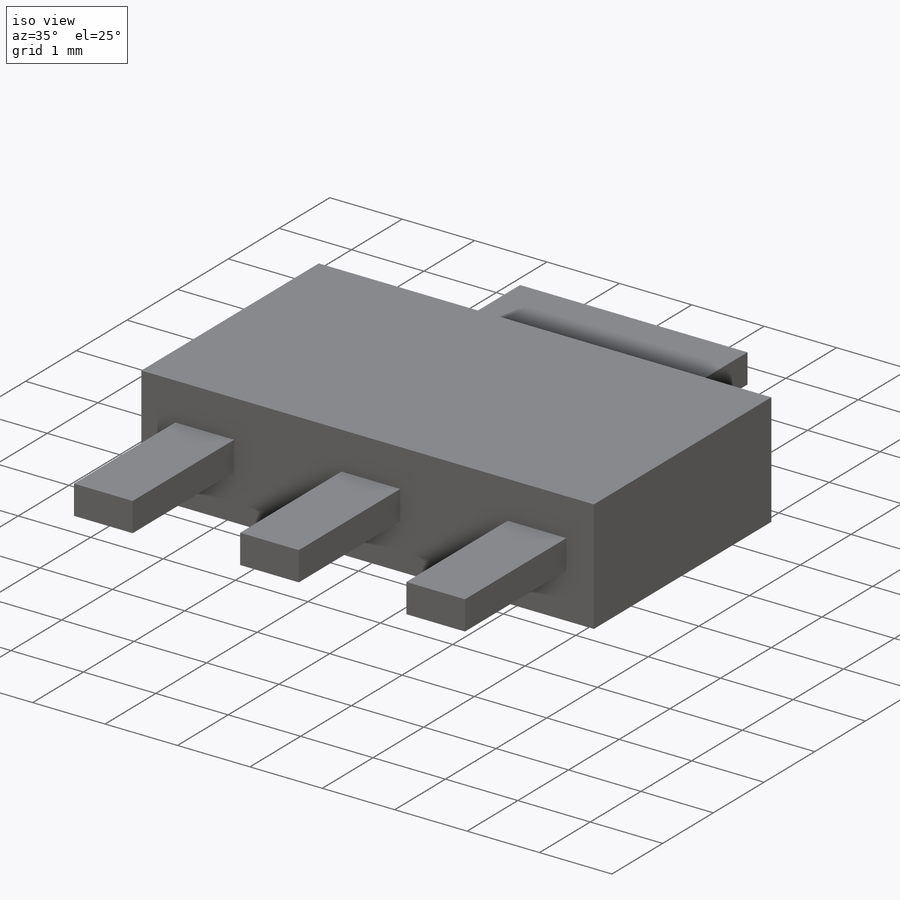
[diagram: iso view]
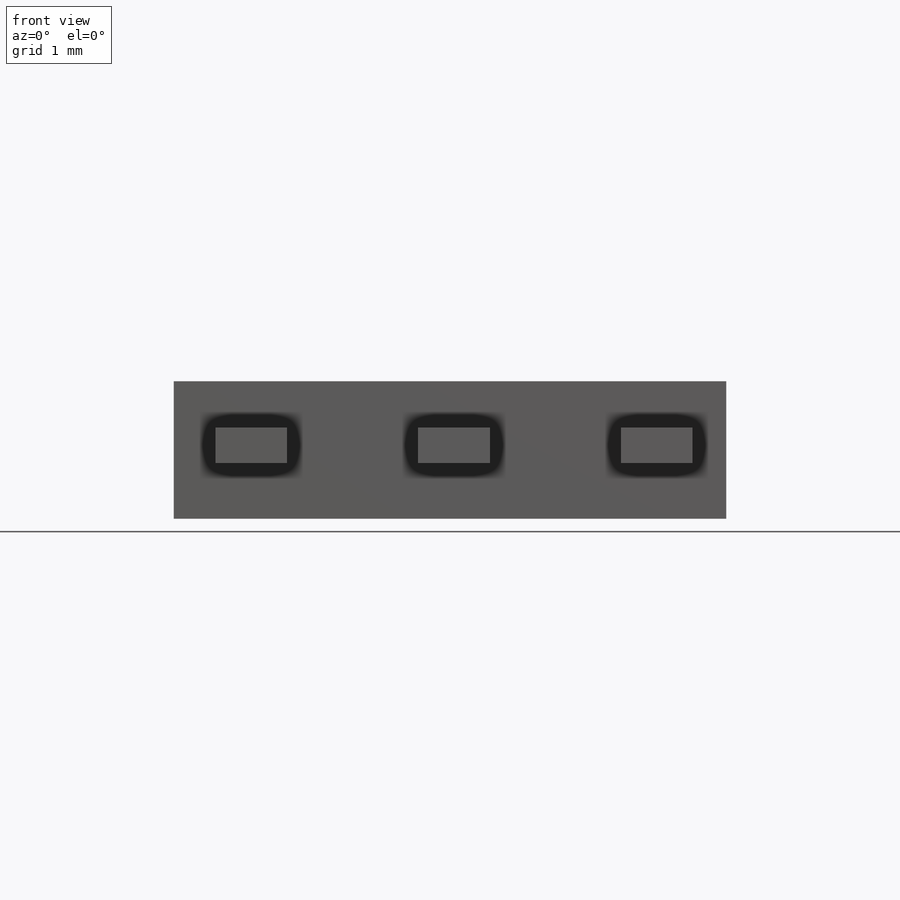
[diagram: front view]
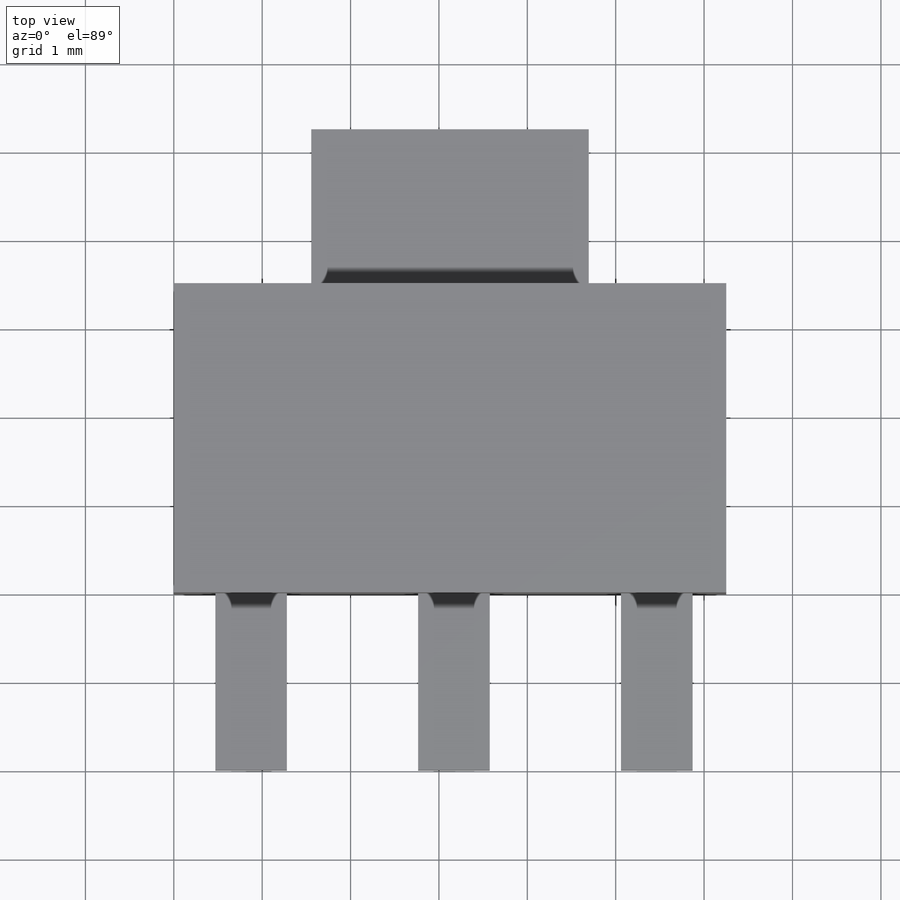
[diagram: top view]
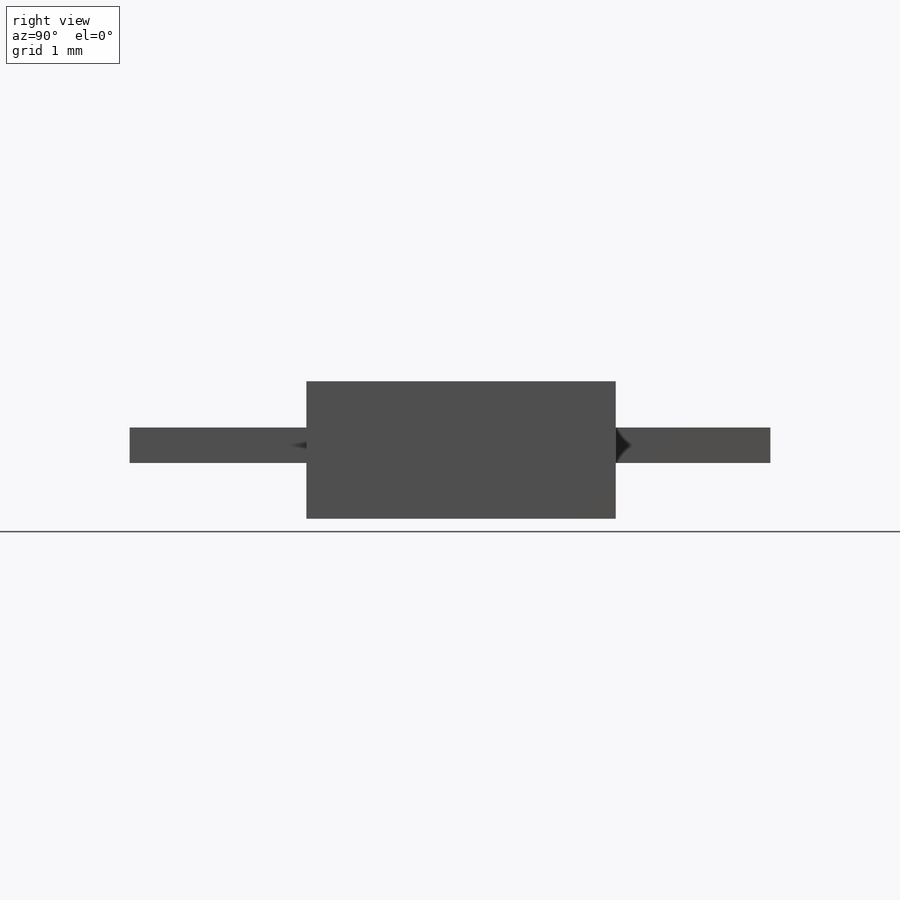
[diagram: right view]
SOLIDWORKS PART (.sldprt)
format: sldprt  version: not decoded by parser v0  size: 165,888 bytes
history: native  units: mm
features: sketch x4, extrude x3, material x1 (+11 scaffold rows collapsed)
feature tree (19):
  scaffold x11  (default folders/planes/origin — collapsed)
  material  "Material <not specified>"
  sketch  "Sketch1"
  extrude  "Boss-Extrude1"  Depth=1.555mm
  sketch  "Sketch2"  dims[c1.D1=0.4025mm c2.D1=3.0]
  sketch  "Sketch5"
  extrude  "Boss-Extrude8"  Depth=2mm
  sketch  "Sketch7"  dims[D1=3.14mm]
  extrude  "Boss-Extrude9"  Depth=1.75mm
decode coverage: 5 of 7 modeling features carry decoded parameters
note: suppression state not decoded; provenance and decode notes live in map.json
